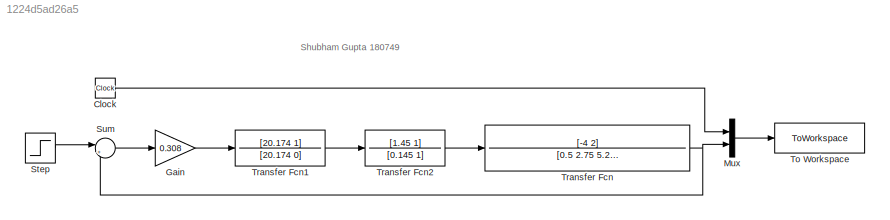
MODEL slx_1224d5ad26a5
KIND model
CONFIG AbsTol = auto
CONFIG EnableMultiTasking = off
CONFIG FixedStep = auto
CONFIG MaxStep = auto
CONFIG MinStep = auto
CONFIG RelTol = 1e-3
CONFIG SampleTimeConstraint = Unconstrained
CONFIG SolverName = VariableStepAuto
CONFIG StartTime = 0.0
CONFIG StopTime = 250
BLOCK [Clock] Clock
BLOCK [Gain] Gain
  Gain = 0.308
BLOCK [Mux] Mux
  DisplayOption = bar
  Inputs = 2
  Ports = [2, 1]
BLOCK [Step] Step
  SampleTime = 0
  Time = 0
BLOCK [Sum] Sum
  Inputs = |+-
  Ports = [2, 1]
BLOCK [ToWorkspace] To Workspace
  FixptAsFi = on
  MaxDataPoints = inf
  Ports = [1]
  SampleTime = -1
  VariableName = Y
BLOCK [TransferFcn] Transfer Fcn
  Denominator = [0.5 2.75 5.25 4 1]
  Numerator = [-4 2]
BLOCK [TransferFcn] Transfer Fcn1
  Denominator = [20.174 0]
  Numerator = [20.174 1]
BLOCK [TransferFcn] Transfer Fcn2
  Denominator = [0.145 1]
  Numerator = [1.45 1]
ANNOTATION (root): Shubham Gupta 180749
LINE Clock:1 -> Mux:1
LINE Gain:1 -> Transfer Fcn1:1
LINE Mux:1 -> To Workspace:1
LINE Step:1 -> Sum:1
LINE Sum:1 -> Gain:1
LINE Transfer Fcn1:1 -> Transfer Fcn2:1
LINE Transfer Fcn2:1 -> Transfer Fcn:1
NET Transfer Fcn:1 -> Mux:2, Sum:2
note: NET lines group one-source signal fan-out (src -> all destinations, sorted); 1:1 wires keep LINE
